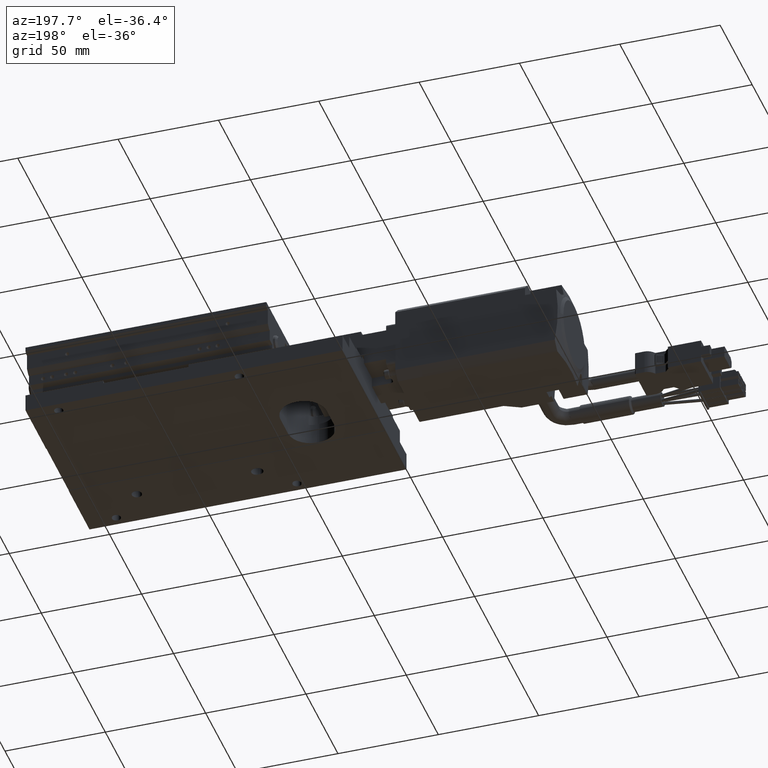
[diagram: clean part render]
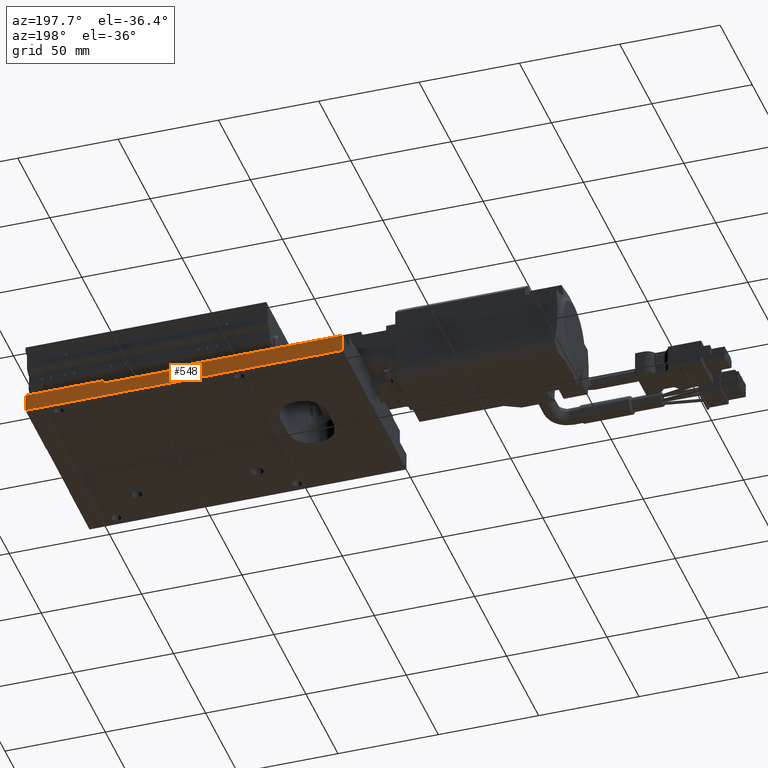
[diagram: same view with one face highlighted and labeled with its STEP entity id]
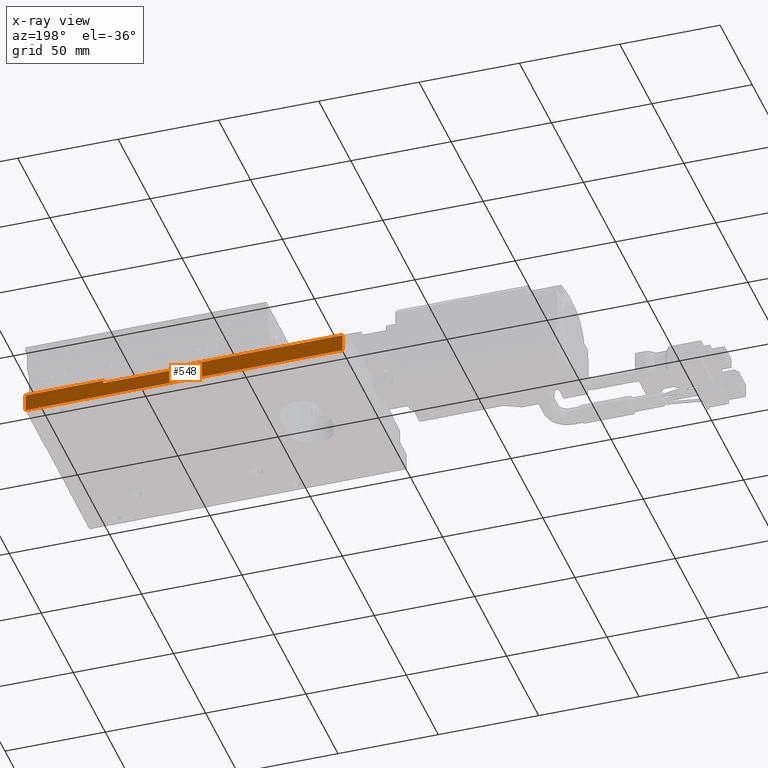
[diagram: x-ray of the same camera — body ghosted, the highlighted face saturated]
A machine part, auxiliary view. The second image highlights one B-rep face of the part: STEP entity #548.
The next image is the same camera in x-ray: the body ghosted, the highlighted face saturated — about 0% of this face is hidden behind the body in this view.
In plain terms, the highlighted planar face has unit normal (0, 1, 0).
Its self-contained STEP definition (entity closure, byte-faithful):
#548=ADVANCED_FACE('',(#5855),#5854,.T.);
#5854=PLANE('',#17200);
#5855=FACE_OUTER_BOUND('',#17201,.T.);
#17197=CARTESIAN_POINT('',(-1.08000000000E+02,5.00000000000E+01,9.68000000000E+00));
#17198=DIRECTION('',(-0.00000000000E+00,1.00000000000E+00,0.00000000000E+00));
#17199=DIRECTION('',(1.00000000000E+00,0.00000000000E+00,0.00000000000E+00));
#17200=AXIS2_PLACEMENT_3D('',#17197,#17198,#17199);
#17201=EDGE_LOOP('',(#24417,#24418,#24419,#24420,#24421,#24422,#24423,#24424));
#24417=ORIENTED_EDGE('',*,*,#29676,.T.);
#24418=ORIENTED_EDGE('',*,*,#29523,.T.);
#24419=ORIENTED_EDGE('',*,*,#29543,.T.);
#24420=ORIENTED_EDGE('',*,*,#29548,.T.);
#24421=ORIENTED_EDGE('',*,*,#29578,.T.);
#24422=ORIENTED_EDGE('',*,*,#29393,.F.);
#24423=ORIENTED_EDGE('',*,*,#29364,.F.);
#24424=ORIENTED_EDGE('',*,*,#29371,.F.);
#29364=EDGE_CURVE('',#38114,#38121,#38122,.T.);
#29371=EDGE_CURVE('',#38162,#38114,#38170,.T.);
#29393=EDGE_CURVE('',#38121,#38316,#38317,.T.);
#29523=EDGE_CURVE('',#39207,#39199,#39208,.T.);
#29543=EDGE_CURVE('',#39199,#39339,#39347,.T.);
#29548=EDGE_CURVE('',#39339,#39372,#39379,.T.);
#29578=EDGE_CURVE('',#39372,#38316,#39585,.T.);
#29676=EDGE_CURVE('',#38162,#39207,#40240,.T.);
#38114=VERTEX_POINT('',#55830);
#38121=VERTEX_POINT('',#55834);
#38122=LINE('',#55835,#55836);
#38162=VERTEX_POINT('',#55861);
#38170=LINE('',#55866,#55867);
#38316=VERTEX_POINT('',#55946);
#38317=LINE('',#55947,#55948);
#39199=VERTEX_POINT('',#56582);
#39207=VERTEX_POINT('',#56587);
#39208=LINE('',#56588,#56589);
#39339=VERTEX_POINT('',#56674);
#39347=LINE('',#56679,#56680);
#39372=VERTEX_POINT('',#56693);
#39379=LINE('',#56697,#56698);
#39585=LINE('',#56823,#56824);
#40240=LINE('',#57223,#57224);
#55830=CARTESIAN_POINT('',(-9.80000000000E+01,5.00000000000E+01,6.93889390391E-15));
#55834=CARTESIAN_POINT('',(6.00000000000E+01,5.00000000000E+01,6.93889390391E-15));
#55835=CARTESIAN_POINT('',(-9.80000000000E+01,5.00000000000E+01,6.93889390391E-15));
#55836=VECTOR('',#55837,1.58000000000E+02);
#55837=DIRECTION('',(1.00000000000E+00,0.00000000000E+00,0.00000000000E+00));
#55861=CARTESIAN_POINT('',(-9.80000000000E+01,5.00000000000E+01,8.80000000000E+00));
#55866=CARTESIAN_POINT('',(-9.80000000000E+01,5.00000000000E+01,8.80000000000E+00));
#55867=VECTOR('',#55868,8.80000000000E+00);
#55868=DIRECTION('',(0.00000000000E+00,0.00000000000E+00,-1.00000000000E+00));
#55946=CARTESIAN_POINT('',(6.00000000000E+01,5.00000000000E+01,8.80000000000E+00));
#55947=CARTESIAN_POINT('',(6.00000000000E+01,5.00000000000E+01,7.10542735760E-15));
#55948=VECTOR('',#55949,8.80000000000E+00);
#55949=DIRECTION('',(0.00000000000E+00,0.00000000000E+00,1.00000000000E+00));
#56582=CARTESIAN_POINT('',(-2.12500000000E+01,5.00000000000E+01,7.29999999999E+00));
#56587=CARTESIAN_POINT('',(-2.12500000000E+01,5.00000000000E+01,8.79999999999E+00));
#56588=CARTESIAN_POINT('',(-2.12500000000E+01,5.00000000000E+01,8.79999999999E+00));
#56589=VECTOR('',#56590,1.50000000000E+00);
#56590=DIRECTION('',(0.00000000000E+00,0.00000000000E+00,-1.00000000000E+00));
#56674=CARTESIAN_POINT('',(2.12500000000E+01,5.00000000000E+01,7.29999999999E+00));
#56679=CARTESIAN_POINT('',(-2.12500000000E+01,5.00000000000E+01,7.29999999999E+00));
#56680=VECTOR('',#56681,4.25000000000E+01);
#56681=DIRECTION('',(1.00000000000E+00,0.00000000000E+00,0.00000000000E+00));
#56693=CARTESIAN_POINT('',(2.12500000000E+01,5.00000000000E+01,8.79999999999E+00));
#56697=CARTESIAN_POINT('',(2.12500000000E+01,5.00000000000E+01,7.29999999999E+00));
#56698=VECTOR('',#56699,1.50000000000E+00);
#56699=DIRECTION('',(0.00000000000E+00,0.00000000000E+00,1.00000000000E+00));
#56823=CARTESIAN_POINT('',(2.12500000000E+01,5.00000000000E+01,8.80000000000E+00));
#56824=VECTOR('',#56825,3.87500000000E+01);
#56825=DIRECTION('',(1.00000000000E+00,0.00000000000E+00,0.00000000000E+00));
#57223=CARTESIAN_POINT('',(-9.80000000000E+01,5.00000000000E+01,8.80000000000E+00));
#57224=VECTOR('',#57225,7.67500000000E+01);
#57225=DIRECTION('',(1.00000000000E+00,0.00000000000E+00,0.00000000000E+00));